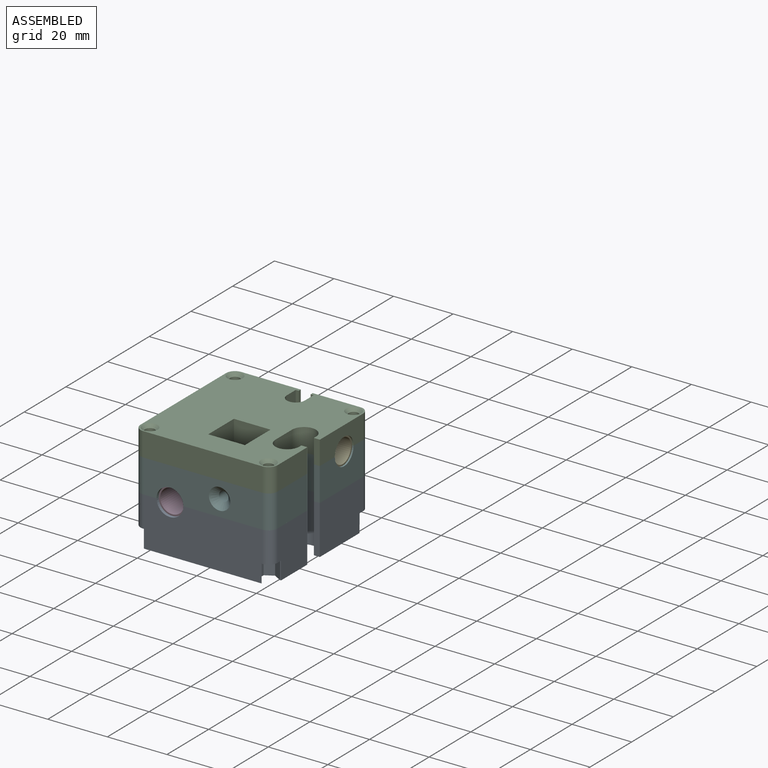
[diagram: assembled view]
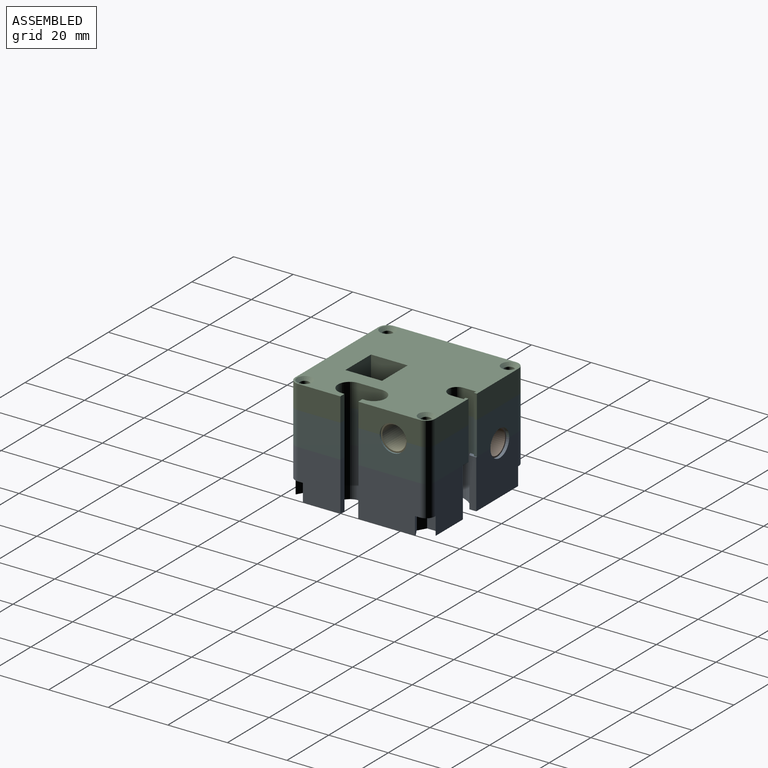
[diagram: assembled view, second angle]
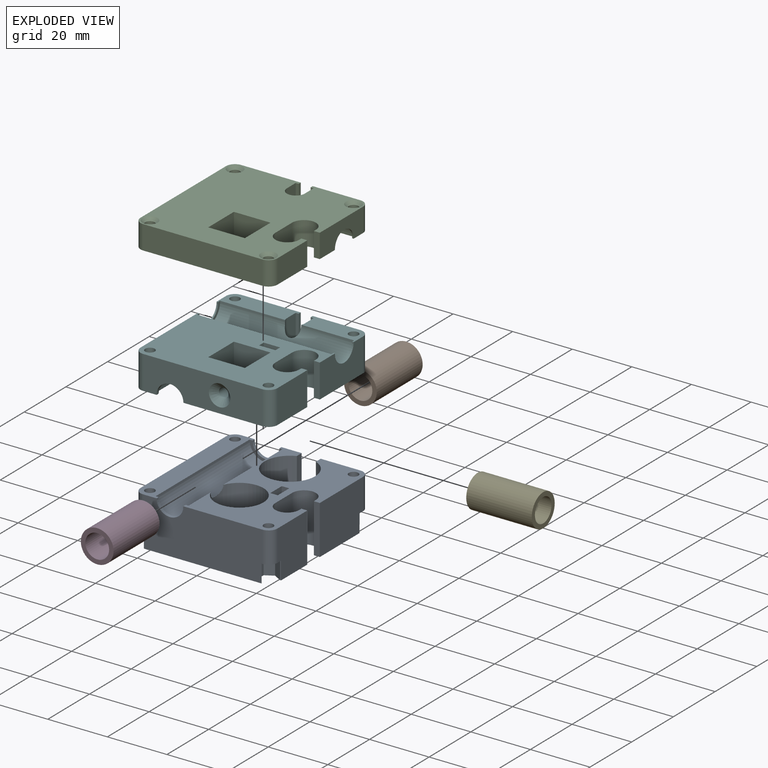
[diagram: exploded view]
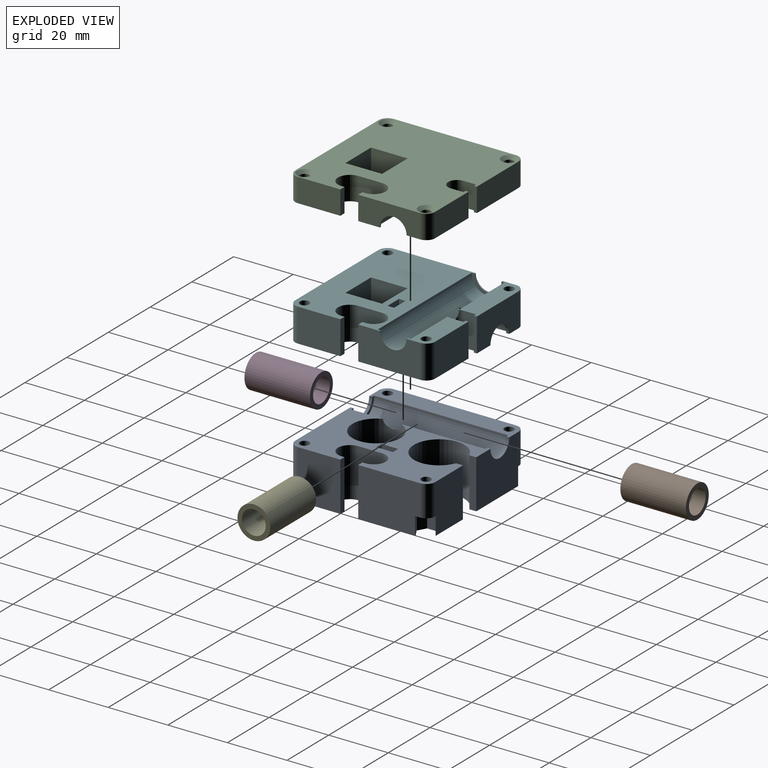
[diagram: exploded view, second angle]
ASSEMBLY  parts=6 mates=5
PART A: 69 faces, bbox 46x47x16.4 mm
  f0: plane 40x16.4mm, normal (0,-1,0), area 621.4mm2, adj f2,f8,f10,f13,f14,f30,f46,f47
  f1: plane 20.3x16.4mm, normal (0,1,0), area 299.7mm2, adj f2,f7,f13,f14,f15,f29,f58,f59
  f2: plane 47x46mm, normal (0,0,-1), area 1471.2mm2, adj f0,f1,f16,f17,f18,f19,f20,f21
  f3: cylinder r=1.6mm len=10.4mm, axis (0,0,-1), area 104.6mm2, adj f13,f59
  f4: cylinder r=1.6mm len=10.4mm, axis (0,0,-1), area 104.6mm2, adj f14,f65
  f5: cylinder r=1.6mm len=10.4mm, axis (0,0,-1), area 104.6mm2, adj f14,f53
  f6: cylinder r=3mm len=10.4mm, axis (0,0,-1), area 49mm2, adj f14,f25,f26,f65
  f7: cylinder r=3mm len=10.4mm, axis (0,0,-1), area 49mm2, adj f1,f13,f16,f59
  f8: cylinder r=3mm len=10.4mm, axis (0,0,-1), area 49mm2, adj f0,f14,f17,f53
  f9: cylinder r=1.6mm len=10.4mm, axis (0,0,-1), area 104.6mm2, adj f13,f47
  f10: cylinder r=3mm len=10.4mm, axis (0,0,-1), area 49mm2, adj f0,f13,f16,f47
  f11: cylinder r=1.6mm len=3.2mm, axis (-1,0,0), area 23.8mm2, adj f21,f22,f39
  f12: cylinder r=6.15mm len=12.3mm, axis (0,0,-1), area 185.5mm2, adj f35,f37
  f13: plane 47x7.5mm, normal (0,0,1), area 287.6mm2, adj f0,f1,f3,f7,f9,f10,f15,f16
  f14: plane 47x29.5mm, normal (0,0,1), area 738.7mm2, adj f0,f1,f4,f5,f6,f8,f15,f17
  f15: cylinder r=4.5mm len=9mm, axis (0,-1,0), area 14.1mm2, adj f1,f13,f14,f32
  f16: plane 41x16.4mm, normal (-1,0,0), area 611.4mm2, adj f2,f7,f10,f13,f44,f45,f47,f57
  f17: plane 16.4x14.27mm, normal (1,0,0), area 223.9mm2, adj f2,f8,f14,f18,f52,f53
  f18: plane 16.4x2mm, normal (0,1,0), area 32.8mm2, adj f2,f14,f17,f19
  f19: plane 16.4x1mm, normal (-1,0,0), area 16.4mm2, adj f2,f14,f18,f20
  f20: cylinder r=4mm len=16.4mm, axis (0,0,-1), area 206.1mm2, adj f2,f14,f19,f21
  f21: plane 16.4x8mm, normal (1,0,0), area 124.8mm2, adj f2,f11,f14,f20,f22
  f22: cylinder r=4mm len=16.4mm, axis (0,0,-1), area 204.4mm2, adj f2,f11,f14,f21,f23
  f23: plane 16.4x1mm, normal (-1,0,0), area 16.4mm2, adj f2,f14,f22,f24
  f24: plane 16.4x2mm, normal (0,-1,0), area 32.8mm2, adj f2,f14,f23,f25
  f25: plane 20.73x16.4mm, normal (1,0,0), area 329.8mm2, adj f2,f6,f14,f24,f63,f65
  f26: plane 16.4x13.3mm, normal (0,1,0), area 216.7mm2, adj f2,f6,f14,f27,f64,f65
  f27: plane 16.4x2.33mm, normal (-1,0,0), area 38.1mm2, adj f2,f14,f26,f28
  f28: cylinder r=8.5mm len=17mm, axis (0,0,-1), area 768.2mm2, adj f2,f14,f27,f29
  f29: plane 16.4x2.33mm, normal (1,0,0), area 38.1mm2, adj f1,f2,f14,f28
  f30: cylinder r=4.5mm len=9mm, axis (0,-1,0), area 14.1mm2, adj f0,f13,f14,f33
  f31: cylinder r=5.5mm len=45mm, axis (0,-1,0), area 765.1mm2, adj f13,f14,f32,f33,f36
  f32: plane 11x5.5mm, normal (0,-1,0), area 15.7mm2, adj f13,f14,f15,f31
  f33: plane 11x5.5mm, normal (0,1,0), area 15.7mm2, adj f13,f14,f30,f31
  f34: cylinder r=8.1mm len=16.2mm, axis (0,0,-1), area 112mm2, adj f2,f35
  f35: plane 16.2x16.2mm, normal (0,0,-1), area 87.3mm2, adj f12,f34
  f36: cylinder r=8.1mm len=16.2mm, axis (0,0,-1), area 466mm2, adj f14,f31,f37
  f37: plane 16.2x16.2mm, normal (0,0,1), area 87.3mm2, adj f12,f36
  f38: cylinder r=1.6mm len=29.15mm, axis (-1,0,0), area 293mm2, adj f40,f44
  f39: plane 14.5x5.5mm, normal (-1,0,0), area 71.7mm2, adj f11,f14,f41,f42,f43
  f40: plane 14.5x5.5mm, normal (1,0,0), area 71.7mm2, adj f14,f38,f41,f42,f43
  f41: plane 14.5x2.5mm, normal (0,1,0), area 36.2mm2, adj f14,f39,f40,f43
  f42: plane 14.5x2.5mm, normal (0,-1,0), area 36.2mm2, adj f14,f39,f40,f43
  f43: plane 5.5x2.5mm, normal (0,0,1), area 13.7mm2, adj f39,f40,f41,f42
  f44: cone r=1.6mm half-angle=45deg, axis (-1,0,0), area 46.2mm2, adj f16,f38
  f45: plane 6x0.35mm, normal (0,-1,0), area 2.1mm2, adj f2,f16,f47,f48
  f46: plane 6x2.62mm, normal (-0.5,0.87,0), area 18.1mm2, adj f0,f2,f47,f49
  f47: plane 6.28x5.85mm, normal (0,0,-1), area 19.8mm2, adj f0,f9,f10,f16,f45,f46,f48,f49
  f48: plane 6x2.75mm, normal (0.5,-0.87,0), area 19.1mm2, adj f2,f45,f47,f50
  f49: plane 6x3.18mm, normal (-1,0,0), area 19.1mm2, adj f2,f46,f47,f50
  f50: plane 6x2.75mm, normal (-0.5,-0.87,0), area 19.1mm2, adj f2,f47,f48,f49
  f51: plane 6x2.62mm, normal (0.5,0.87,0), area 18.1mm2, adj f0,f2,f53,f55
  f52: plane 6x0.35mm, normal (0,-1,0), area 2.1mm2, adj f2,f17,f53,f56
  f53: plane 6.28x5.85mm, normal (0,0,-1), area 19.8mm2, adj f0,f5,f8,f17,f51,f52,f54,f55
  f54: plane 6x2.75mm, normal (0.5,-0.87,0), area 19.1mm2, adj f2,f53,f55,f56
  f55: plane 6x3.18mm, normal (1,0,0), area 19.1mm2, adj f2,f51,f53,f54
  f56: plane 6x2.75mm, normal (-0.5,-0.87,0), area 19.1mm2, adj f2,f52,f53,f54
  f57: plane 6x0.35mm, normal (0,1,0), area 2.1mm2, adj f2,f16,f59,f62
  f58: plane 6x2.62mm, normal (-0.5,-0.87,0), area 18.1mm2, adj f1,f2,f59,f61
  f59: plane 6.28x5.85mm, normal (0,0,-1), area 19.8mm2, adj f1,f3,f7,f16,f57,f58,f60,f61
  f60: plane 6x2.75mm, normal (-0.5,0.87,0), area 19.1mm2, adj f2,f59,f61,f62
  f61: plane 6x3.18mm, normal (-1,0,0), area 19.1mm2, adj f2,f58,f59,f60
  f62: plane 6x2.75mm, normal (0.5,0.87,0), area 19.1mm2, adj f2,f57,f59,f60
  f63: plane 6x0.35mm, normal (0,1,0), area 2.1mm2, adj f2,f25,f65,f66
  f64: plane 6x2.62mm, normal (0.5,-0.87,0), area 18.1mm2, adj f2,f26,f65,f67
  f65: plane 6.28x5.85mm, normal (0,0,-1), area 19.8mm2, adj f4,f6,f25,f26,f63,f64,f66,f67
  f66: plane 6x2.75mm, normal (-0.5,0.87,0), area 19.1mm2, adj f2,f63,f65,f68
  f67: plane 6x3.18mm, normal (1,0,0), area 19.1mm2, adj f2,f64,f65,f68
  f68: plane 6x2.75mm, normal (0.5,0.87,0), area 19.1mm2, adj f2,f65,f66,f67
PART B: 4 faces, bbox 11x11x22 mm
  f0: plane 11x11mm, normal (0,0,1), area 44.8mm2, adj f2,f3
  f1: plane 11x11mm, normal (0,0,-1), area 44.8mm2, adj f2,f3
  f2: cylinder r=5.5mm len=22mm, axis (0,0,-1), area 760.3mm2, adj f0,f1
  f3: cylinder r=4mm len=22mm, axis (0,0,-1), area 552.9mm2, adj f0,f1
PART C: 45 faces, bbox 46x47x8 mm
  f0: plane 46x30.5mm, normal (0,0,-1), area 1060.5mm2, adj f1,f5,f6,f7,f8,f9,f10,f11
  f1: cylinder r=4.5mm len=9mm, axis (1,0,0), area 7.1mm2, adj f0,f4,f5,f35
  f2: plane 19x7.5mm, normal (0,0,-1), area 108.6mm2, adj f15,f16,f17,f18,f19,f20,f26,f33
  f3: plane 47x46mm, normal (0,0,1), area 1748.2mm2, adj f5,f6,f7,f8,f9,f10,f11,f12
  f4: plane 23x7.5mm, normal (0,0,-1), area 134.6mm2, adj f1,f5,f20,f21,f22,f23,f24,f25
  f5: plane 41x8mm, normal (-1,0,0), area 296.2mm2, adj f0,f1,f3,f4,f37,f38
  f6: plane 40x8mm, normal (0,-1,0), area 320mm2, adj f0,f3,f38,f40
  f7: plane 14.27x8mm, normal (1,0,0), area 114.2mm2, adj f0,f3,f8,f40
  f8: plane 8x2mm, normal (0,1,0), area 16mm2, adj f0,f3,f7,f9
  f9: plane 8x1mm, normal (-1,0,0), area 8mm2, adj f0,f3,f8,f10
  f10: cylinder r=4mm len=8mm, axis (0,0,-1), area 100.5mm2, adj f0,f3,f9,f11
  f11: plane 8x8mm, normal (1,0,0), area 64mm2, adj f0,f3,f10,f12
  f12: cylinder r=4mm len=8mm, axis (0,0,-1), area 100.5mm2, adj f0,f3,f11,f13
  f13: plane 8x1mm, normal (-1,0,0), area 8mm2, adj f0,f3,f12,f14
  f14: plane 8x2mm, normal (0,-1,0), area 16mm2, adj f0,f3,f13,f15
  f15: plane 20.73x8mm, normal (1,0,0), area 134mm2, adj f0,f2,f3,f14,f33,f39
  f16: plane 16x8mm, normal (0,1,0), area 128mm2, adj f2,f3,f17,f39
  f17: plane 8x0.98mm, normal (-1,0,0), area 7.9mm2, adj f2,f3,f16,f18
  f18: plane 8x1mm, normal (0,-1,0), area 8mm2, adj f2,f3,f17,f19
  f19: plane 8x4.25mm, normal (-1,0,0), area 34mm2, adj f2,f3,f18,f20
  f20: cylinder r=3mm len=8mm, axis (0,0,-1), area 53.7mm2, adj f2,f3,f4,f19,f21,f34
  f21: plane 8x4.24mm, normal (1,0,0), area 33.9mm2, adj f3,f4,f20,f22
  f22: plane 8x1mm, normal (0,-1,0), area 8mm2, adj f3,f4,f21,f23
  f23: plane 8x1mm, normal (1,0,0), area 8mm2, adj f3,f4,f22,f24
  f24: plane 20x8mm, normal (0,1,0), area 160mm2, adj f3,f4,f23,f37
  f25: cylinder r=1.6mm len=7mm, axis (0,0,-1), area 70.4mm2, adj f4,f42
  f26: cylinder r=1.6mm len=7mm, axis (0,0,-1), area 70.4mm2, adj f2,f41
  f27: cylinder r=1.6mm len=7mm, axis (0,0,-1), area 70.4mm2, adj f0,f44
  f28: cylinder r=1.6mm len=7mm, axis (0,0,-1), area 70.4mm2, adj f0,f43
  f29: plane 12.3x8mm, normal (-1,0,0), area 98.4mm2, adj f0,f3,f30,f32
  f30: plane 12.3x8mm, normal (0,-1,0), area 98.4mm2, adj f0,f3,f29,f31
  f31: plane 12.3x8mm, normal (1,0,0), area 98.4mm2, adj f0,f3,f30,f32
  f32: plane 12.3x8mm, normal (0,1,0), area 98.4mm2, adj f0,f3,f29,f31
  f33: cylinder r=4.5mm len=9mm, axis (1,0,0), area 7.1mm2, adj f0,f2,f15,f36
  f34: cylinder r=5.5mm len=45mm, axis (1,0,0), area 757.5mm2, adj f0,f2,f4,f20,f35,f36
  f35: plane 11x5.5mm, normal (1,0,0), area 15.7mm2, adj f0,f1,f4,f34
  f36: plane 11x5.5mm, normal (-1,0,0), area 15.7mm2, adj f0,f2,f33,f34
  f37: cylinder r=3mm len=8mm, axis (0,0,-1), area 37.7mm2, adj f3,f4,f5,f24
  f38: cylinder r=3mm len=8mm, axis (0,0,-1), area 37.7mm2, adj f0,f3,f5,f6
  f39: cylinder r=3mm len=8mm, axis (0,0,-1), area 37.7mm2, adj f2,f3,f15,f16
  f40: cylinder r=3mm len=8mm, axis (0,0,-1), area 37.7mm2, adj f0,f3,f6,f7
  f41: cone r=1.6mm half-angle=45deg, axis (0,0,1), area 18.7mm2, adj f3,f26
  f42: cone r=1.6mm half-angle=45deg, axis (0,0,1), area 18.7mm2, adj f3,f25
  f43: cone r=1.6mm half-angle=45deg, axis (0,0,1), area 18.7mm2, adj f3,f28
  f44: cone r=1.6mm half-angle=45deg, axis (0,0,1), area 18.7mm2, adj f3,f27
PART D: same geometry as B
PART E: same geometry as B
PART F: 60 faces, bbox 46x47x11.2 mm
  f0: cylinder r=1.6mm len=3.2mm, axis (0,-1,0), area 20.3mm2, adj f33,f52
  f1: plane 47x7.5mm, normal (0,0,-1), area 287.6mm2, adj f3,f8,f9,f27,f28,f31,f40,f41
  f2: plane 47x29.5mm, normal (0,0,-1), area 1000.4mm2, adj f3,f9,f10,f11,f12,f13,f14,f15
  f3: cylinder r=4.5mm len=9mm, axis (0,-1,0), area 14.1mm2, adj f1,f2,f27,f45
  f4: plane 46x30.5mm, normal (0,0,1), area 1048.4mm2, adj f5,f8,f9,f10,f11,f12,f13,f14
  f5: cylinder r=4.5mm len=9mm, axis (1,0,0), area 7.1mm2, adj f4,f7,f8,f38
  f6: plane 19x7.5mm, normal (0,0,1), area 108.6mm2, adj f18,f19,f20,f21,f22,f23,f29,f36
  f7: plane 23x7.5mm, normal (0,0,1), area 134.6mm2, adj f5,f8,f23,f24,f25,f26,f27,f28
  f8: plane 41x11.2mm, normal (-1,0,0), area 427.4mm2, adj f1,f4,f5,f7,f47,f50
  f9: plane 40x11.2mm, normal (0,-1,0), area 375.5mm2, adj f1,f2,f4,f40,f49,f50,f59
  f10: plane 14.27x11.2mm, normal (1,0,0), area 159.8mm2, adj f2,f4,f11,f49
  f11: plane 11.2x2mm, normal (0,1,0), area 22.4mm2, adj f2,f4,f10,f12
  f12: plane 11.2x1mm, normal (-1,0,0), area 11.2mm2, adj f2,f4,f11,f13
  f13: cylinder r=4mm len=11.2mm, axis (0,0,-1), area 140.7mm2, adj f2,f4,f12,f14
  f14: plane 11.2x8mm, normal (1,0,0), area 89.6mm2, adj f2,f4,f13,f15
  f15: cylinder r=4mm len=11.2mm, axis (0,0,-1), area 140.7mm2, adj f2,f4,f14,f16
  f16: plane 11.2x1mm, normal (-1,0,0), area 11.2mm2, adj f2,f4,f15,f17
  f17: plane 11.2x2mm, normal (0,-1,0), area 22.4mm2, adj f2,f4,f16,f18
  f18: plane 20.73x11.2mm, normal (1,0,0), area 200.3mm2, adj f2,f4,f6,f17,f36,f48
  f19: plane 16x11.2mm, normal (0,1,0), area 179.2mm2, adj f2,f6,f20,f48
  f20: plane 11.2x0.98mm, normal (-1,0,0), area 11mm2, adj f2,f6,f19,f21
  f21: plane 11.2x1mm, normal (0,-1,0), area 11.2mm2, adj f2,f6,f20,f22
  f22: plane 11.2x4.25mm, normal (-1,0,0), area 47.6mm2, adj f2,f6,f21,f23
  f23: cylinder r=3mm len=11.2mm, axis (0,0,-1), area 83.9mm2, adj f2,f6,f7,f22,f24,f37
  f24: plane 11.2x4.24mm, normal (1,0,0), area 47.4mm2, adj f2,f7,f23,f25
  f25: plane 11.2x1mm, normal (0,-1,0), area 11.2mm2, adj f2,f7,f24,f26
  f26: plane 11.2x1mm, normal (1,0,0), area 11.2mm2, adj f2,f7,f25,f27
  f27: plane 20x11.2mm, normal (0,1,0), area 192.2mm2, adj f1,f2,f3,f7,f26,f47
  f28: cylinder r=1.6mm len=11.2mm, axis (0,0,-1), area 112.6mm2, adj f1,f7
  f29: cylinder r=1.6mm len=11.2mm, axis (0,0,-1), area 112.6mm2, adj f2,f6
  f30: cylinder r=1.6mm len=11.2mm, axis (0,0,-1), area 112.6mm2, adj f2,f4
  f31: cylinder r=1.6mm len=11.2mm, axis (0,0,-1), area 112.6mm2, adj f1,f4
  f32: plane 12.3x11.2mm, normal (-1,0,0), area 137.8mm2, adj f2,f4,f33,f35
  f33: plane 12.3x11.2mm, normal (0,-1,0), area 129.7mm2, adj f0,f2,f4,f32,f34
  f34: plane 12.3x11.2mm, normal (1,0,0), area 137.8mm2, adj f2,f4,f33,f35
  f35: plane 12.3x11.2mm, normal (0,1,0), area 129.7mm2, adj f2,f4,f32,f34,f51
  f36: cylinder r=4.5mm len=9mm, axis (1,0,0), area 7.1mm2, adj f4,f6,f18,f39
  f37: cylinder r=5.5mm len=45mm, axis (1,0,0), area 754.6mm2, adj f4,f6,f7,f23,f38,f39,f43,f44
  f38: plane 11x5.5mm, normal (1,0,0), area 15.7mm2, adj f4,f5,f7,f37
  f39: plane 11x5.5mm, normal (-1,0,0), area 15.7mm2, adj f4,f6,f36,f37
  f40: cylinder r=4.5mm len=9mm, axis (0,-1,0), area 14.1mm2, adj f1,f2,f9,f46
  f41: cylinder r=5.5mm len=45mm, axis (0,-1,0), area 320.4mm2, adj f1,f43,f45,f46
  f42: cylinder r=5.5mm len=45mm, axis (0,-1,0), area 320.4mm2, adj f2,f44,f45,f46
  f43: plane 45x1.5mm, normal (0.42,0,-0.91), area 72.8mm2, adj f37,f41,f44,f45,f46
  f44: plane 45x1.5mm, normal (-0.42,0,-0.91), area 72.8mm2, adj f37,f42,f43,f45,f46
  f45: plane 11x5.99mm, normal (0,-1,0), area 16.3mm2, adj f1,f2,f3,f41,f42,f43,f44
  f46: plane 11x5.99mm, normal (0,1,0), area 16.3mm2, adj f1,f2,f40,f41,f42,f43,f44
  f47: cylinder r=3mm len=11.2mm, axis (0,0,-1), area 52.8mm2, adj f1,f7,f8,f27
  f48: cylinder r=3mm len=11.2mm, axis (0,0,-1), area 52.8mm2, adj f2,f6,f18,f19
  f49: cylinder r=3mm len=11.2mm, axis (0,0,-1), area 52.8mm2, adj f2,f4,f9,f10
  f50: cylinder r=3mm len=11.2mm, axis (0,0,-1), area 52.8mm2, adj f1,f4,f8,f9
  f51: cylinder r=1.6mm len=6.55mm, axis (0,-1,0), area 65.9mm2, adj f35,f59
  f52: plane 8.7x5.5mm, normal (0,1,0), area 39.8mm2, adj f0,f4,f54,f55,f56
  f53: plane 8.7x5.5mm, normal (0,-1,0), area 39.8mm2, adj f4,f54,f55,f56,f58
  f54: plane 8.7x2.2mm, normal (-1,0,0), area 19.1mm2, adj f4,f52,f53,f56
  f55: plane 8.7x2.2mm, normal (1,0,0), area 19.1mm2, adj f4,f52,f53,f56
  f56: plane 5.5x2.2mm, normal (0,0,1), area 12.1mm2, adj f52,f53,f54,f55
  f57: plane 3.2x3.2mm, normal (0,-1,0), area 8mm2, adj f58
  f58: cylinder r=1.6mm len=3.2mm, axis (0,-1,0), area 29.4mm2, adj f53,f57
  f59: cone r=1.6mm half-angle=45deg, axis (0,-1,0), area 46.2mm2, adj f9,f51
PLACE A t=(58.1,108,75.38)mm
PLACE B rot(axis=(1,0,0),90deg) t=(48.12,130.12,91.78)mm
PLACE C t=(36.12,84.12,102.98)mm
PLACE D rot(axis=(1,0,0),90deg) t=(48.12,107.12,91.78)mm
PLACE E rot(axis=(-0.58,-0.58,0.58),120deg) t=(81.62,119.12,102.98)mm
PLACE F t=(58.87,107.75,91.78)mm
MATE fastened D.f2 <-> A.f15  axis (0,1,0) through (48.12,85.12,91.78)mm
MATE fastened B.f2 <-> A.f15  axis (0,1,0) through (48.12,130.12,91.78)mm
MATE fastened F.f29 <-> A.f4  axis (0,0,-1) through (79.02,128.02,91.78)mm
MATE fastened E.f2 <-> F.f37  axis (1,0,0) through (81.62,119.12,102.98)mm
MATE fastened C.f26 <-> F.f29  axis (0,0,-1) through (79.02,128.02,102.98)mm
